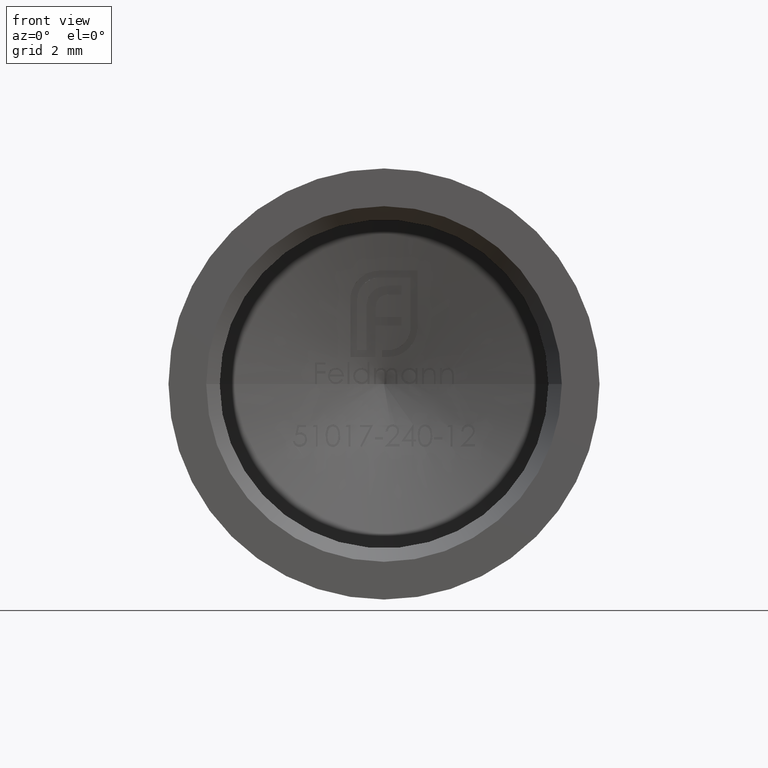
[diagram: clean part render]
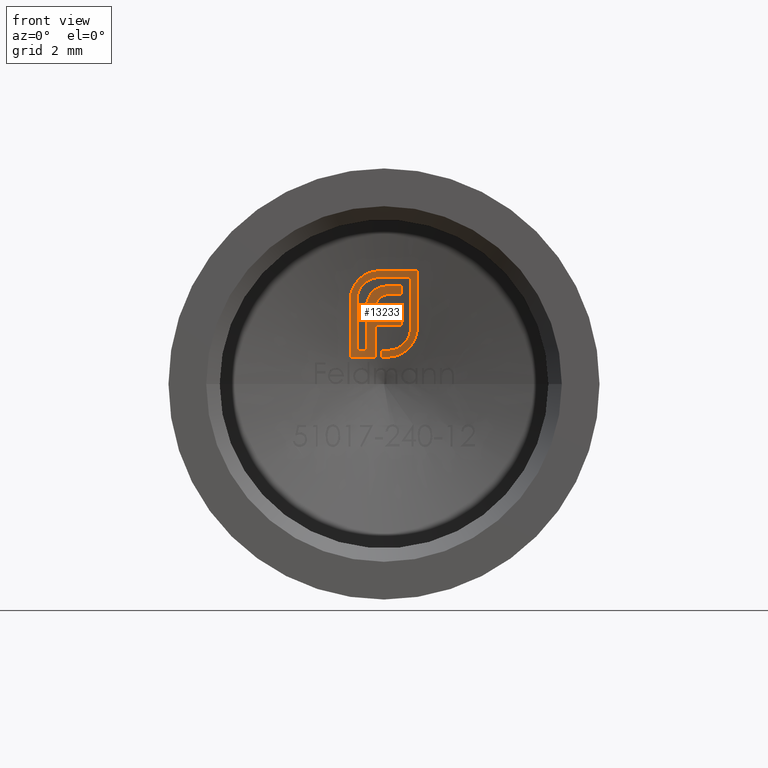
[diagram: same view with one face highlighted and labeled with its STEP entity id]
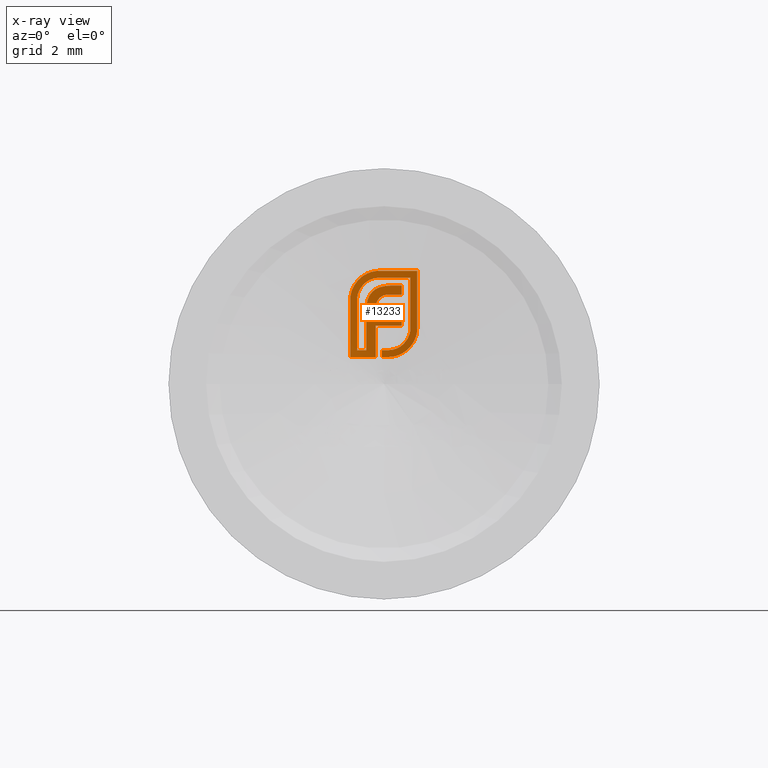
[diagram: x-ray of the same camera — body ghosted, the highlighted face saturated]
A machine part, front view. The second image highlights one B-rep face of the part: STEP entity #13233.
The next image is the same camera in x-ray: the body ghosted, the highlighted face saturated — about 0% of this face is hidden behind the body in this view.
In plain terms, the highlighted conical surface has half-angle 75 deg.
Its self-contained STEP definition (entity closure, byte-faithful):
#134 = CARTESIAN_POINT ( 'NONE',  ( -0.2433240541105528287, 10.78334259401383832, 3.554680266185218596 ) ) ;
#264 = CARTESIAN_POINT ( 'NONE',  ( -0.4732188624301016944, 10.61743272805755645, 4.155220474873162928 ) ) ;
#314 = CARTESIAN_POINT ( 'NONE',  ( 0.5182391580436173095, 11.42129359102153963, 1.062772891488430016 ) ) ;
#321 = CARTESIAN_POINT ( 'NONE',  ( 1.191073256184313811, 11.16410936479228688, 1.780136930600507039 ) ) ;
#355 = EDGE_CURVE ( 'NONE', #9059, #12767, #1266, .T. ) ;
#358 = CARTESIAN_POINT ( 'NONE',  ( -0.6566389944034701776, 10.62995375449193425, 4.083161113188366720 ) ) ;
#366 = CARTESIAN_POINT ( 'NONE',  ( -0.1695112343033198521, 10.67939810049422356, 3.947183960046360962 ) ) ;
#406 = CARTESIAN_POINT ( 'NONE',  ( -0.2641474625173491630, 10.91682011223252857, 3.053365038213695648 ) ) ;
#452 = CARTESIAN_POINT ( 'NONE',  ( -0.6594243849602638985, 10.98570233744071700, 2.729143007495610007 ) ) ;
#451 = CARTESIAN_POINT ( 'NONE',  ( 1.069718622535346109, 11.24094982552607291, 1.515596671005931873 ) ) ;
#517 = CARTESIAN_POINT ( 'NONE',  ( -0.6594243849602638985, 10.98570233744071700, 2.729143007495610007 ) ) ;
#584 = CARTESIAN_POINT ( 'NONE',  ( -0.3126968602489273441, 11.15280644644332142, 2.161537207782977088 ) ) ;
#627 = CARTESIAN_POINT ( 'NONE',  ( -1.001657293610527688, 11.30845690417145200, 1.251698499420081268 ) ) ;
#638 = B_SPLINE_CURVE_WITH_KNOTS ( 'NONE', 3,
 ( #3253, #2278, #5444, #11419 ),
 .UNSPECIFIED., .F., .F.,
 ( 4, 4 ),
 ( 0.006697679589464196857, 0.007652147710954322092 ),
 .UNSPECIFIED. ) ;
#664 = CARTESIAN_POINT ( 'NONE',  ( -0.6029206401924905867, 10.88211147615717422, 3.136868893035792638 ) ) ;
#672 = EDGE_LOOP ( 'NONE', ( #9614, #11719, #12907, #7747, #11613, #1938, #7271, #8560, #7602, #924, #5816, #3522, #9293, #10704, #1053, #3006, #5995, #3181, #935, #1604, #2308, #9861, #4613, #6312, #12676, #12193, #779, #745, #4141, #5273, #12232, #9686, #6493, #3368, #7977, #6836, #6113, #10258, #11946, #12000 ) ) ;
#721 = CARTESIAN_POINT ( 'NONE',  ( 0.2978901951364215650, 10.61706596472331476, 4.198882459466442008 ) ) ;
#745 = ORIENTED_EDGE ( 'NONE', *, *, #12741, .F. ) ;
#779 = ORIENTED_EDGE ( 'NONE', *, *, #10146, .F. ) ;
#780 = CARTESIAN_POINT ( 'NONE',  ( -1.110170167085001491, 10.71628522906261516, 3.647970947980651690 ) ) ;
#882 = EDGE_CURVE ( 'NONE', #4011, #2346, #2606, .T. ) ;
#915 = CARTESIAN_POINT ( 'NONE',  ( -1.253355793030608956, 10.83831620651414696, 3.115037900739153098 ) ) ;
#919 = CARTESIAN_POINT ( 'NONE',  ( 0.4213317924720296204, 11.37377939198252186, 1.293022771506558533 ) ) ;
#924 = ORIENTED_EDGE ( 'NONE', *, *, #4314, .F. ) ;
#933 = B_SPLINE_CURVE_WITH_KNOTS ( 'NONE', 3,
 ( #6242, #10364, #7412, #4664, #11889, #7976, #9341, #1060, #10715, #4774 ),
 .UNSPECIFIED., .F., .F.,
 ( 4, 2, 2, 2, 4 ),
 ( 0.000000000000000000, 0.0001358462477003052405, 0.0002716924954006104810, 0.0004075387431009167244, 0.0005433849908012229135 ),
 .UNSPECIFIED. ) ;
#935 = ORIENTED_EDGE ( 'NONE', *, *, #7231, .F. ) ;
#968 = CARTESIAN_POINT ( 'NONE',  ( -0.8946738547044057466, 10.76275543361560239, 3.528289486708229283 ) ) ;
#1028 = CARTESIAN_POINT ( 'NONE',  ( 1.020215079330140551, 11.26507293020398848, 1.440340858638214261 ) ) ;
#1053 = ORIENTED_EDGE ( 'NONE', *, *, #12171, .F. ) ;
#1059 = CARTESIAN_POINT ( 'NONE',  ( 0.2157415709314986496, 10.84572805253975680, 3.323074415565955064 ) ) ;
#1060 = CARTESIAN_POINT ( 'NONE',  ( -0.8166899600559849315, 10.64848221603874912, 3.983546323950967860 ) ) ;
#1080 = EDGE_CURVE ( 'NONE', #9316, #11594, #638, .T. ) ;
#1101 = CARTESIAN_POINT ( 'NONE',  ( -0.2900255182388855602, 10.93604912877039048, 2.978941634808932371 ) ) ;
#1152 = CARTESIAN_POINT ( 'NONE',  ( -0.3879603547800207219, 10.80465252567604217, 3.461779580568327130 ) ) ;
#1183 = CARTESIAN_POINT ( 'NONE',  ( -0.1246291608954841756, 10.87254990435634738, 3.227590688719622847 ) ) ;
#1208 = CARTESIAN_POINT ( 'NONE',  ( -0.2169265141573604727, 10.78076552079796180, 3.565921661557652111 ) ) ;
#1228 = EDGE_CURVE ( 'NONE', #2346, #10290, #9775, .T. ) ;
#1266 = B_SPLINE_CURVE_WITH_KNOTS ( 'NONE', 3,
 ( #1910, #4893, #10068, #6908, #919, #7073, #2855, #13196, #3873, #5924 ),
 .UNSPECIFIED., .F., .F.,
 ( 4, 2, 2, 2, 4 ),
 ( 0.000000000000000000, 0.0001656254510194789264, 0.0003312509020389578528, 0.0004968763530584365895, 0.0006625018040779153804 ),
 .UNSPECIFIED. ) ;
#1273 = CARTESIAN_POINT ( 'NONE',  ( 0.06342001417806018837, 10.85104504750736965, 3.309833828674840106 ) ) ;
#1330 = CARTESIAN_POINT ( 'NONE',  ( 0.5281490697403309342, 10.74971785167613447, 3.652465564041724289 ) ) ;
#1359 = B_SPLINE_CURVE_WITH_KNOTS ( 'NONE', 3,
 ( #1568, #9623, #9673, #2597 ),
 .UNSPECIFIED., .F., .F.,
 ( 4, 4 ),
 ( 0.002152027295361657808, 0.002487553794992473314 ),
 .UNSPECIFIED. ) ;
#1366 = VERTEX_POINT ( 'NONE', #2163 ) ;
#1478 = CARTESIAN_POINT ( 'NONE',  ( -0.2780241077777936276, 10.92658614537447015, 3.015514259386824936 ) ) ;
#1500 = VERTEX_POINT ( 'NONE', #4096 ) ;
#1568 = CARTESIAN_POINT ( 'NONE',  ( 0.6536455928817421768, 11.04914302250940494, 2.486433740197674602 ) ) ;
#1604 = ORIENTED_EDGE ( 'NONE', *, *, #10939, .F. ) ;
#1635 = CARTESIAN_POINT ( 'NONE',  ( 0.8716515069738145494, 11.23474944785518304, 1.663728158845152238 ) ) ;
#1652 = CARTESIAN_POINT ( 'NONE',  ( -1.001657293610527466, 10.94018969745794578, 2.805595843226769581 ) ) ;
#1733 = EDGE_CURVE ( 'NONE', #8076, #10280, #7266, .T. ) ;
#1737 = CARTESIAN_POINT ( 'NONE',  ( -0.5182543294720668436, 10.83949934335397103, 3.313075253422793853 ) ) ;
#1764 = CARTESIAN_POINT ( 'NONE',  ( -0.08282935312548563023, 11.46915091082972893, 1.000000000000000000 ) ) ;
#1785 = B_SPLINE_CURVE_WITH_KNOTS ( 'NONE', 3,
 ( #4137, #1101, #5029, #2039, #8132, #13208, #5071, #13255, #9237, #12221 ),
 .UNSPECIFIED., .F., .F.,
 ( 4, 3, 3, 4 ),
 ( 0.000000000000000000, 0.0001189127789049717330, 0.0001795930550203252098, 0.0002406153749452432148 ),
 .UNSPECIFIED. ) ;
#1819 = CARTESIAN_POINT ( 'NONE',  ( -0.2208271837044394892, 10.61168287734798987, 4.198047868689132933 ) ) ;
#1828 = CARTESIAN_POINT ( 'NONE',  ( -0.1695112343033198521, 10.61201407754752246, 4.198882459466442008 ) ) ;
#1910 = CARTESIAN_POINT ( 'NONE',  ( 0.1508906820503041479, 11.40019792416203614, 1.251698499420081268 ) ) ;
#1913 = DIRECTION ( 'NONE',  ( 1.000000000000000000, 0.000000000000000000, 0.000000000000000000 ) ) ;
#1938 = ORIENTED_EDGE ( 'NONE', *, *, #7228, .F. ) ;
#1982 = CARTESIAN_POINT ( 'NONE',  ( -1.206129675286370384, 10.76244710949660366, 3.435397799288434140 ) ) ;
#2021 = EDGE_CURVE ( 'NONE', #10280, #1366, #9587, .T. ) ;
#2039 = CARTESIAN_POINT ( 'NONE',  ( -0.3044392186170329917, 10.95581122826907361, 2.903316285091132265 ) ) ;
#2099 = CARTESIAN_POINT ( 'NONE',  ( 1.044965805188694086, 11.25301148500011550, 1.477969587715892708 ) ) ;
#2138 = CARTESIAN_POINT ( 'NONE',  ( -1.253355793030608956, 11.30838718935037157, 1.000000000000000000 ) ) ;
#2146 = CARTESIAN_POINT ( 'NONE',  ( 0.6536455928817421768, 11.04914302250940494, 2.486433740197674602 ) ) ;
#2163 = CARTESIAN_POINT ( 'NONE',  ( 1.234735240777593335, 11.08899522778271596, 2.083844558727288909 ) ) ;
#2198 = EDGE_CURVE ( 'NONE', #13117, #8076, #11752, .T. ) ;
#2278 = CARTESIAN_POINT ( 'NONE',  ( -0.6279216656614928782, 11.43206599383698752, 1.000000000000000000 ) ) ;
#2287 = CARTESIAN_POINT ( 'NONE',  ( -0.2935141347919171806, 10.78972081661109073, 3.526899839852684515 ) ) ;
#2308 = ORIENTED_EDGE ( 'NONE', *, *, #9622, .F. ) ;
#2346 = VERTEX_POINT ( 'NONE', #10103 ) ;
#2369 = CARTESIAN_POINT ( 'NONE',  ( 0.2453583476918172745, 11.46301871168365416, 1.000905635432476570 ) ) ;
#2407 = B_SPLINE_CURVE_WITH_KNOTS ( 'NONE', 3,
 ( #7920, #6910, #4728, #11025 ),
 .UNSPECIFIED., .F., .F.,
 ( 4, 4 ),
 ( 0.001730843256147333300, 0.002695212669129569676 ),
 .UNSPECIFIED. ) ;
#2489 = B_SPLINE_CURVE_WITH_KNOTS ( 'NONE', 3,
 ( #3451, #9734, #9551, #7679 ),
 .UNSPECIFIED., .F., .F.,
 ( 4, 4 ),
 ( 0.006539150735051768235, 0.008031916321640505951 ),
 .UNSPECIFIED. ) ;
#2536 = EDGE_CURVE ( 'NONE', #9100, #4916, #5496, .T. ) ;
#2540 = CARTESIAN_POINT ( 'NONE',  ( -0.7416116500770251196, 10.63903194434736221, 4.033865841224195670 ) ) ;
#2560 = CARTESIAN_POINT ( 'NONE',  ( -0.1740058503643927279, 10.88349181031967916, 3.184383405681419976 ) ) ;
#2572 = CARTESIAN_POINT ( 'NONE',  ( 0.8984859287905668790, 11.22020483113245426, 1.710939821134884076 ) ) ;
#2587 = CARTESIAN_POINT ( 'NONE',  ( -0.6029206401924905867, 10.88211147615717422, 3.136868893035792638 ) ) ;
#2597 = CARTESIAN_POINT ( 'NONE',  ( 0.6536455928817421768, 11.13293313931984940, 2.161537207782977088 ) ) ;
#2606 = B_SPLINE_CURVE_WITH_KNOTS ( 'NONE', 3,
 ( #9116, #3881, #8131, #968, #6090, #11033, #6957, #8005, #13165, #12053 ),
 .UNSPECIFIED., .F., .F.,
 ( 4, 2, 2, 2, 4 ),
 ( 0.000000000000000000, 0.0001664201758982373233, 0.0003328403517964746467, 0.0004992605276947119971, 0.0006656807035929492933 ),
 .UNSPECIFIED. ) ;
#2634 = CARTESIAN_POINT ( 'NONE',  ( 0.9830367413575119562, 11.12064220427707006, 2.083844558727288909 ) ) ;
#2638 = CARTESIAN_POINT ( 'NONE',  ( 1.176257902578488279, 11.17655909360886923, 1.734145590540119075 ) ) ;
#2671 = CARTESIAN_POINT ( 'NONE',  ( -0.4684758631825453601, 10.82331409948897338, 3.381483360198422883 ) ) ;
#2689 = CARTESIAN_POINT ( 'NONE',  ( 1.191073256184313811, 11.16410936479228688, 1.780136930600507039 ) ) ;
#2855 = CARTESIAN_POINT ( 'NONE',  ( 0.5685218004715163476, 11.34276802693577046, 1.361426098264004514 ) ) ;
#2864 = CARTESIAN_POINT ( 'NONE',  ( 1.095690332344828599, 11.22780516606560219, 1.557310380108104964 ) ) ;
#2942 = VERTEX_POINT ( 'NONE', #13058 ) ;
#3006 = ORIENTED_EDGE ( 'NONE', *, *, #10679, .F. ) ;
#3051 = CARTESIAN_POINT ( 'NONE',  ( -0.2246393147396444356, 10.67914742709648301, 3.945752880880289304 ) ) ;
#3151 = B_SPLINE_CURVE_WITH_KNOTS ( 'NONE', 3,
 ( #2689, #2638, #5713, #4653, #6741, #10034, #4823, #2864, #11970, #7928 ),
 .UNSPECIFIED., .F., .F.,
 ( 4, 3, 3, 4 ),
 ( 0.000000000000000000, 0.0001496904950075358953, 0.0002254258711029978309, 0.0003015573197085586583 ),
 .UNSPECIFIED. ) ;
#3158 = CARTESIAN_POINT ( 'NONE',  ( -0.1695112343033198521, 10.67939810049422356, 3.947183960046360962 ) ) ;
#3181 = ORIENTED_EDGE ( 'NONE', *, *, #2536, .F. ) ;
#3199 = CARTESIAN_POINT ( 'NONE',  ( -0.009631320130870129476, 10.85688934258209493, 3.288401663094821625 ) ) ;
#3211 = CARTESIAN_POINT ( 'NONE',  ( -0.3126968602489273441, 10.98691795716242936, 2.785646752263383430 ) ) ;
#3219 = CARTESIAN_POINT ( 'NONE',  ( -0.3126968602489282878, 11.35812450618299252, 1.387699873013314100 ) ) ;
#3245 = B_SPLINE_CURVE_WITH_KNOTS ( 'NONE', 3,
 ( #3199, #3386, #9433, #4223, #9384, #5246, #3291, #5383, #1183, #12548, #7474, #10330, #10523 ),
 .UNSPECIFIED., .F., .F.,
 ( 4, 3, 3, 3, 4 ),
 ( 0.000000000000000000, 4.916011534716131017E-05, 9.845895257792747885E-05, 0.0001479516712229819882, 0.0001980046889935523394 ),
 .UNSPECIFIED. ) ;
#3253 = CARTESIAN_POINT ( 'NONE',  ( -0.3126968602489273441, 11.45727401962419201, 1.000000000000000000 ) ) ;
#3262 = VERTEX_POINT ( 'NONE', #8828 ) ;
#3263 = VERTEX_POINT ( 'NONE', #5853 ) ;
#3268 = CARTESIAN_POINT ( 'NONE',  ( 0.2071823631977518509, 10.75815418175201899, 3.651684335950307503 ) ) ;
#3291 = CARTESIAN_POINT ( 'NONE',  ( -0.09751797577028413488, 10.86790554551342503, 3.245838153666627424 ) ) ;
#3313 = CARTESIAN_POINT ( 'NONE',  ( -0.3126968602489273996, 11.04001479319509116, 2.586176377862551057 ) ) ;
#3332 = B_SPLINE_CURVE_WITH_KNOTS ( 'NONE', 3,
 ( #8119, #3051, #9020, #9105, #10102, #4035, #10184, #4074, #8073, #7069 ),
 .UNSPECIFIED., .F., .F.,
 ( 4, 2, 2, 2, 4 ),
 ( 0.000000000000000000, 0.0001650699929171063650, 0.0003301399858342127301, 0.0004952099787513189596, 0.0006602799716684251349 ),
 .UNSPECIFIED. ) ;
#3343 = B_SPLINE_CURVE_WITH_KNOTS ( 'NONE', 3,
 ( #8994, #12152, #7208, #1059 ),
 .UNSPECIFIED., .F., .F.,
 ( 4, 4 ),
 ( 0.003202012160605001261, 0.003638394130782475217 ),
 .UNSPECIFIED. ) ;
#3368 = ORIENTED_EDGE ( 'NONE', *, *, #5708, .F. ) ;
#3386 = CARTESIAN_POINT ( 'NONE',  ( -0.02478556059678957771, 10.85849192985430989, 3.282376315429698543 ) ) ;
#3427 = B_SPLINE_CURVE_WITH_KNOTS ( 'NONE', 3,
 ( #5754, #6823, #10976, #9898, #3791, #11874 ),
 .UNSPECIFIED., .F., .F.,
 ( 4, 2, 4 ),
 ( 0.000000000000000000, 0.0001582293088963881967, 0.0003164586177927763934 ),
 .UNSPECIFIED. ) ;
#3451 = CARTESIAN_POINT ( 'NONE',  ( -0.6594243849602638985, 11.35892974509016362, 1.251698499420081268 ) ) ;
#3522 = ORIENTED_EDGE ( 'NONE', *, *, #11717, .F. ) ;
#3566 = CARTESIAN_POINT ( 'NONE',  ( 0.6536455928817421768, 10.77275122218357417, 3.542679297845014563 ) ) ;
#3590 = CARTESIAN_POINT ( 'NONE',  ( -0.4295568778368222262, 10.81374068918439590, 3.422598056918283227 ) ) ;
#3591 = EDGE_CURVE ( 'NONE', #8294, #13117, #4855, .T. ) ;
#3619 = CARTESIAN_POINT ( 'NONE',  ( -0.2780241077777936276, 10.92658614537447015, 3.015514259386824936 ) ) ;
#3714 = CARTESIAN_POINT ( 'NONE',  ( 2.163521355902780435E-17, 11.73108265645873338, 0.000000000000000000 ) ) ;
#3761 = CARTESIAN_POINT ( 'NONE',  ( 1.234735240777593335, 10.56529419157631011, 4.198882459466442008 ) ) ;
#3791 = CARTESIAN_POINT ( 'NONE',  ( 1.204728413421271238, 11.15107721792158024, 1.829519832489686193 ) ) ;
#3793 = CARTESIAN_POINT ( 'NONE',  ( -1.001657293610527688, 11.01822514646699425, 2.495920158407092693 ) ) ;
#3850 = CARTESIAN_POINT ( 'NONE',  ( 0.7681821015610048597, 10.60056246802761848, 4.198882459466442008 ) ) ;
#3871 = CARTESIAN_POINT ( 'NONE',  ( -0.2720138771660565169, 10.61159146623187688, 4.195383536033015837 ) ) ;
#3873 = CARTESIAN_POINT ( 'NONE',  ( 0.6971724150907031570, 11.30518577522432189, 1.457272336016402159 ) ) ;
#3881 = CARTESIAN_POINT ( 'NONE',  ( -0.7970341974923724759, 10.73432607764131497, 3.660329849972501659 ) ) ;
#4011 = VERTEX_POINT ( 'NONE', #5781 ) ;
#4035 = CARTESIAN_POINT ( 'NONE',  ( -0.5406748956101101733, 10.69281497431897243, 3.863452641131183807 ) ) ;
#4074 = CARTESIAN_POINT ( 'NONE',  ( -0.6787559661687746493, 10.71064342257980861, 3.773979395617331534 ) ) ;
#4096 = CARTESIAN_POINT ( 'NONE',  ( -0.3126968602489273441, 11.06653187956590223, 2.486433740197674602 ) ) ;
#4110 = CARTESIAN_POINT ( 'NONE',  ( 0.1508906820503041479, 11.46703533372010675, 1.000000000000000000 ) ) ;
#4137 = CARTESIAN_POINT ( 'NONE',  ( -0.2780241077777936276, 10.92658614537447015, 3.015514259386824936 ) ) ;
#4141 = ORIENTED_EDGE ( 'NONE', *, *, #9267, .F. ) ;
#4143 = CARTESIAN_POINT ( 'NONE',  ( 0.9830367413575119562, 10.64806629767433854, 3.947183960046360962 ) ) ;
#4217 = CARTESIAN_POINT ( 'NONE',  ( -0.005020455731209405581, 11.40326919264334293, 1.251698499420080823 ) ) ;
#4223 = CARTESIAN_POINT ( 'NONE',  ( -0.05469195162671761090, 10.86186510193268617, 3.269388555799415119 ) ) ;
#4245 = CARTESIAN_POINT ( 'NONE',  ( -0.3427064975971805261, 10.79656440981908538, 3.496882884889696008 ) ) ;
#4246 = CARTESIAN_POINT ( 'NONE',  ( -0.06827480450647656351, 10.76901784520386052, 3.615872735177605435 ) ) ;
#4258 = CARTESIAN_POINT ( 'NONE',  ( 0.1774532261783996201, 10.84653971945814810, 3.322524622922911508 ) ) ;
#4277 = VERTEX_POINT ( 'NONE', #9450 ) ;
#4314 = EDGE_CURVE ( 'NONE', #5515, #1500, #5623, .T. ) ;
#4349 = CARTESIAN_POINT ( 'NONE',  ( -0.3126968602489273441, 11.06653187956590223, 2.486433740197674602 ) ) ;
#4464 = CARTESIAN_POINT ( 'NONE',  ( 0.6536455928817421768, 10.74379412674733558, 3.652465564041724289 ) ) ;
#4512 = CARTESIAN_POINT ( 'NONE',  ( -0.6029206401924905867, 10.88211147615717422, 3.136868893035792638 ) ) ;
#4549 = CARTESIAN_POINT ( 'NONE',  ( 1.234735240777593335, 10.56529419157631011, 4.198882459466442008 ) ) ;
#4560 = CARTESIAN_POINT ( 'NONE',  ( -0.1923863443848250199, 10.88838917981933463, 3.165074532621362291 ) ) ;
#4586 = CARTESIAN_POINT ( 'NONE',  ( 0.2767399317603448927, 10.75653733109785115, 3.652465564041724289 ) ) ;
#4613 = ORIENTED_EDGE ( 'NONE', *, *, #12035, .F. ) ;
#4620 = CARTESIAN_POINT ( 'NONE',  ( -0.8878831869537293642, 11.32750461839778566, 1.251698499420081934 ) ) ;
#4631 = EDGE_CURVE ( 'NONE', #5282, #2942, #10931, .T. ) ;
#4634 = B_SPLINE_CURVE_WITH_KNOTS ( 'NONE', 3,
 ( #6285, #9303, #3219, #7372 ),
 .UNSPECIFIED., .F., .F.,
 ( 4, 4 ),
 ( 0.006953100636973397024, 0.008153927317847257245 ),
 .UNSPECIFIED. ) ;
#4648 = CARTESIAN_POINT ( 'NONE',  ( -1.001657293610527688, 11.30845690417145200, 1.251698499420081268 ) ) ;
#4653 = CARTESIAN_POINT ( 'NONE',  ( 1.139919322385436029, 11.20184030752485427, 1.644612411368698401 ) ) ;
#4664 = CARTESIAN_POINT ( 'NONE',  ( -1.010811545101904851, 10.68540416101546597, 3.796295761498214461 ) ) ;
#4690 = CARTESIAN_POINT ( 'NONE',  ( -0.4732188624301016944, 10.61743272805755645, 4.155220474873162928 ) ) ;
#4697 = EDGE_CURVE ( 'NONE', #10324, #5515, #1785, .T. ) ;
#4728 = CARTESIAN_POINT ( 'NONE',  ( 0.008620409459761543824, 11.16513323170924998, 2.161537207782977088 ) ) ;
#4774 = CARTESIAN_POINT ( 'NONE',  ( -0.7416116500770251196, 10.63903194434736221, 4.033865841224195670 ) ) ;
#4780 = EDGE_CURVE ( 'NONE', #2942, #9059, #5881, .T. ) ;
#4823 = CARTESIAN_POINT ( 'NONE',  ( 1.107494320517296460, 11.22126321968708496, 1.578852953785505608 ) ) ;
#4855 = B_SPLINE_CURVE_WITH_KNOTS ( 'NONE', 3,
 ( #6378, #8494, #358, #7484, #6419, #264 ),
 .UNSPECIFIED., .F., .F.,
 ( 4, 2, 4 ),
 ( 0.000000000000000000, 0.0001478887417600395851, 0.0002957774835200791702 ),
 .UNSPECIFIED. ) ;
#4857 = VERTEX_POINT ( 'NONE', #11363 ) ;
#4893 = CARTESIAN_POINT ( 'NONE',  ( 0.2061886641213674098, 11.39806123964200957, 1.253064343984402251 ) ) ;
#4900 = DIRECTION ( 'NONE',  ( 6.618464551199105246E-18, -1.000000000000000000, 0.000000000000000000 ) ) ;
#4916 = VERTEX_POINT ( 'NONE', #4586 ) ;
#4919 = CARTESIAN_POINT ( 'NONE',  ( -0.1015573170549587262, 10.77146949415595500, 3.605933914526482376 ) ) ;
#5029 = CARTESIAN_POINT ( 'NONE',  ( -0.2988977318179171783, 10.94584937927845480, 2.941279323234382126 ) ) ;
#5071 = CARTESIAN_POINT ( 'NONE',  ( -0.3110778864449019188, 10.97121010149663256, 2.844807342596893829 ) ) ;
#5246 = CARTESIAN_POINT ( 'NONE',  ( -0.08376301980938301306, 10.86569117671981033, 3.254519273406546453 ) ) ;
#5267 = CARTESIAN_POINT ( 'NONE',  ( 0.2767399317603448927, 10.75653733109785115, 3.652465564041724289 ) ) ;
#5273 = ORIENTED_EDGE ( 'NONE', *, *, #355, .F. ) ;
#5282 = VERTEX_POINT ( 'NONE', #1764 ) ;
#5290 = CARTESIAN_POINT ( 'NONE',  ( 0.07310275728702400611, 11.40269248702755966, 1.251698499420082156 ) ) ;
#5375 = B_SPLINE_CURVE_WITH_KNOTS ( 'NONE', 3,
 ( #915, #12085, #10021, #1982, #8030, #7995, #6041, #11180 ),
 .UNSPECIFIED., .F., .F.,
 ( 4, 2, 2, 4 ),
 ( 0.000000000000000000, 0.0002859816643252807516, 0.0004289724964879204497, 0.0005719633286505602021 ),
 .UNSPECIFIED. ) ;
#5383 = CARTESIAN_POINT ( 'NONE',  ( -0.1113269035945815694, 10.87012860307422812, 3.237122970843550718 ) ) ;
#5388 = B_SPLINE_CURVE_WITH_KNOTS ( 'NONE', 3,
 ( #8510, #4620, #8871, #5770 ),
 .UNSPECIFIED., .F., .F.,
 ( 4, 4 ),
 ( 0.001391106858586026521, 0.001736942951801663526 ),
 .UNSPECIFIED. ) ;
#5444 = CARTESIAN_POINT ( 'NONE',  ( -0.9414949176202069836, 11.37370702206428952, 1.000000000000000000 ) ) ;
#5449 = CARTESIAN_POINT ( 'NONE',  ( -0.6579762693364226145, 10.96790085546506432, 2.797840760394894932 ) ) ;
#5467 = B_SPLINE_CURVE_WITH_KNOTS ( 'NONE', 3,
 ( #11476, #8413, #6420, #314, #8458, #7485, #2369, #8496 ),
 .UNSPECIFIED., .F., .F.,
 ( 4, 2, 2, 4 ),
 ( 0.000000000000000000, 0.0001413089714473464572, 0.0002826179428946929144, 0.0005652358857893850699 ),
 .UNSPECIFIED. ) ;
#5471 = CARTESIAN_POINT ( 'NONE',  ( 0.9830367413575119562, 10.64806629767433854, 3.947183960046360962 ) ) ;
#5496 = B_SPLINE_CURVE_WITH_KNOTS ( 'NONE', 3,
 ( #13178, #4919, #4246, #7058, #7017, #6286, #3268, #5267 ),
 .UNSPECIFIED., .F., .F.,
 ( 4, 2, 2, 4 ),
 ( 0.000000000000000000, 0.0001044282383505432246, 0.0002088564767010864492, 0.0004177129534021730610 ),
 .UNSPECIFIED. ) ;
#5515 = VERTEX_POINT ( 'NONE', #3211 ) ;
#5523 = CARTESIAN_POINT ( 'NONE',  ( 1.234735240777593113, 10.74612765233151102, 3.495428303917091029 ) ) ;
#5572 = B_SPLINE_CURVE_WITH_KNOTS ( 'NONE', 3,
 ( #11445, #4258, #12491, #1273, #9421, #11499 ),
 .UNSPECIFIED., .F., .F.,
 ( 4, 2, 4 ),
 ( 0.000000000000000000, 0.0001148892114261486873, 0.0002297784228522973746 ),
 .UNSPECIFIED. ) ;
#5578 = CARTESIAN_POINT ( 'NONE',  ( -1.253355793030608956, 11.17215925349380967, 1.709472976876295292 ) ) ;
#5586 = CARTESIAN_POINT ( 'NONE',  ( -0.2246216627096921936, 10.89913197200573514, 3.122695812206184307 ) ) ;
#5623 = B_SPLINE_CURVE_WITH_KNOTS ( 'NONE', 3,
 ( #8370, #9407, #3313, #4349 ),
 .UNSPECIFIED., .F., .F.,
 ( 4, 4 ),
 ( 0.002743501218454801743, 0.003053125877548327691 ),
 .UNSPECIFIED. ) ;
#5646 = B_SPLINE_CURVE_WITH_KNOTS ( 'NONE', 3,
 ( #12373, #11432, #1152, #10360, #4245, #7267, #2287, #6240, #134, #1208, #10404, #9410, #11385 ),
 .UNSPECIFIED., .F., .F.,
 ( 4, 3, 3, 3, 4 ),
 ( 0.000000000000000000, 8.665964677703199507E-05, 0.0001735910611386216841, 0.0002600756125366974363, 0.0003477364743265353168 ),
 .UNSPECIFIED. ) ;
#5687 = CARTESIAN_POINT ( 'NONE',  ( -0.3126968602489273441, 11.45727401962419201, 1.000000000000000000 ) ) ;
#5706 = CARTESIAN_POINT ( 'NONE',  ( -1.001657293610527688, 10.86125540518187016, 3.115037900739153098 ) ) ;
#5708 = EDGE_CURVE ( 'NONE', #3263, #4277, #5467, .T. ) ;
#5713 = CARTESIAN_POINT ( 'NONE',  ( 1.159848758494165688, 11.18912166475769965, 1.688552683479507044 ) ) ;
#5754 = CARTESIAN_POINT ( 'NONE',  ( 1.234735240777593335, 11.08899522778271596, 2.083844558727288909 ) ) ;
#5770 = CARTESIAN_POINT ( 'NONE',  ( -0.6594243849602638985, 11.35892974509016362, 1.251698499420081268 ) ) ;
#5781 = CARTESIAN_POINT ( 'NONE',  ( -0.7589480263125919501, 10.72596913424622755, 3.699980076687352515 ) ) ;
#5804 = EDGE_CURVE ( 'NONE', #11119, #8402, #1359, .T. ) ;
#5816 = ORIENTED_EDGE ( 'NONE', *, *, #4697, .F. ) ;
#5853 = CARTESIAN_POINT ( 'NONE',  ( 0.6838237292918030175, 11.38108278805168361, 1.143185625945607464 ) ) ;
#5863 = EDGE_CURVE ( 'NONE', #12038, #4011, #3332, .T. ) ;
#5881 = B_SPLINE_CURVE_WITH_KNOTS ( 'NONE', 3,
 ( #6307, #4217, #5290, #6261 ),
 .UNSPECIFIED., .F., .F.,
 ( 4, 4 ),
 ( 0.001167010730956621846, 0.001399543073656213128 ),
 .UNSPECIFIED. ) ;
#5890 = EDGE_CURVE ( 'NONE', #7771, #8921, #5375, .T. ) ;
#5924 = CARTESIAN_POINT ( 'NONE',  ( 0.7358328579985035089, 11.29168281206415081, 1.494407766718016894 ) ) ;
#5971 = CARTESIAN_POINT ( 'NONE',  ( -0.08282935312548567186, 11.44674580923744855, 1.083903322769692146 ) ) ;
#5995 = ORIENTED_EDGE ( 'NONE', *, *, #9735, .F. ) ;
#6041 = CARTESIAN_POINT ( 'NONE',  ( -1.132935639662929761, 10.72500302848034437, 3.607034312355986927 ) ) ;
#6090 = CARTESIAN_POINT ( 'NONE',  ( -0.9204818010160702446, 10.77332195749664123, 3.480792845464526497 ) ) ;
#6113 = ORIENTED_EDGE ( 'NONE', *, *, #12512, .F. ) ;
#6144 = VERTEX_POINT ( 'NONE', #517 ) ;
#6158 = CARTESIAN_POINT ( 'NONE',  ( 0.3326135845192166318, 11.07101335383312168, 2.486433740197671938 ) ) ;
#6188 = CARTESIAN_POINT ( 'NONE',  ( 0.5999168837278945343, 10.67287489365006259, 3.947183960046366291 ) ) ;
#6223 = B_SPLINE_CURVE_WITH_KNOTS ( 'NONE', 3,
 ( #7704, #8674, #5578, #8717, #8634, #10794 ),
 .UNSPECIFIED., .F., .F.,
 ( 4, 2, 4 ),
 ( 0.008782041451198296586, 0.009837762432746054164, 0.01089348341429381348 ),
 .UNSPECIFIED. ) ;
#6240 = CARTESIAN_POINT ( 'NONE',  ( -0.2687888822777131925, 10.78642264346362722, 3.541309015188488285 ) ) ;
#6242 = CARTESIAN_POINT ( 'NONE',  ( -1.110170167085001491, 10.71628522906261516, 3.647970947980651690 ) ) ;
#6261 = CARTESIAN_POINT ( 'NONE',  ( 0.1508906820503041479, 11.40019792416203614, 1.251698499420081268 ) ) ;
#6285 = CARTESIAN_POINT ( 'NONE',  ( -0.3126968602489273441, 11.15280644644332142, 2.161537207782977088 ) ) ;
#6286 = CARTESIAN_POINT ( 'NONE',  ( 0.1377327588149014626, 10.75973916645861728, 3.649036265333032159 ) ) ;
#6307 = CARTESIAN_POINT ( 'NONE',  ( -0.08282935312548564410, 11.40189256193660405, 1.251698499420081490 ) ) ;
#6312 = ORIENTED_EDGE ( 'NONE', *, *, #1228, .F. ) ;
#6378 = CARTESIAN_POINT ( 'NONE',  ( -0.7416116500770251196, 10.63903194434736221, 4.033865841224195670 ) ) ;
#6416 = CARTESIAN_POINT ( 'NONE',  ( 1.234735240777593335, 11.08899522778271596, 2.083844558727288909 ) ) ;
#6419 = CARTESIAN_POINT ( 'NONE',  ( -0.5202346816014425945, 10.61999919998016040, 4.140225942866107900 ) ) ;
#6420 = CARTESIAN_POINT ( 'NONE',  ( 0.6031763396999195725, 11.40220134491986670, 1.098981505368565204 ) ) ;
#6493 = ORIENTED_EDGE ( 'NONE', *, *, #7997, .F. ) ;
#6498 = B_SPLINE_CURVE_WITH_KNOTS ( 'NONE', 3,
 ( #10653, #12542, #7469, #5471 ),
 .UNSPECIFIED., .F., .F.,
 ( 4, 4 ),
 ( 0.002179695057703833188, 0.004096757694464588616 ),
 .UNSPECIFIED. ) ;
#6578 = CARTESIAN_POINT ( 'NONE',  ( 0.7358328579985035089, 11.29168281206415081, 1.494407766718016894 ) ) ;
#6581 = VERTEX_POINT ( 'NONE', #321 ) ;
#6629 = CARTESIAN_POINT ( 'NONE',  ( 0.6536455928817422878, 10.83054074185710647, 3.323074415565955508 ) ) ;
#6741 = CARTESIAN_POINT ( 'NONE',  ( 1.129821084961760480, 11.20828483880355897, 1.622347892803545300 ) ) ;
#6756 = CARTESIAN_POINT ( 'NONE',  ( 0.9573099633284928300, 11.17629454906770903, 1.865097560859794168 ) ) ;
#6823 = CARTESIAN_POINT ( 'NONE',  ( 1.233898725723118872, 11.10096616592103658, 2.032410292526756646 ) ) ;
#6836 = ORIENTED_EDGE ( 'NONE', *, *, #8046, .F. ) ;
#6908 = CARTESIAN_POINT ( 'NONE',  ( 0.3694926773152613642, 11.38198963436228439, 1.277287096742166117 ) ) ;
#6910 = CARTESIAN_POINT ( 'NONE',  ( 0.3327787391361852198, 11.15781919292822266, 2.161537207782977088 ) ) ;
#6946 = CARTESIAN_POINT ( 'NONE',  ( -0.4237401597501690986, 10.61529045649001723, 4.168902122551366496 ) ) ;
#6957 = CARTESIAN_POINT ( 'NONE',  ( -0.9771380555030166892, 10.80840496822079722, 3.329007091042931687 ) ) ;
#7017 = CARTESIAN_POINT ( 'NONE',  ( 0.03415643410721642265, 10.76381439000494566, 3.635778855980708268 ) ) ;
#7058 = CARTESIAN_POINT ( 'NONE',  ( -0.0002470717969093277726, 10.76523531840929593, 3.630633208510736232 ) ) ;
#7069 = CARTESIAN_POINT ( 'NONE',  ( -0.7589480263125919501, 10.72596913424622755, 3.699980076687352515 ) ) ;
#7073 = CARTESIAN_POINT ( 'NONE',  ( 0.5207871155570602539, 11.35423221451029363, 1.334864750438625292 ) ) ;
#7183 = CARTESIAN_POINT ( 'NONE',  ( 0.9646029234480864023, 11.28913843611297096, 1.369662837933675270 ) ) ;
#7208 = CARTESIAN_POINT ( 'NONE',  ( 0.3616330493351488928, 10.84319547461707245, 3.323074415565953288 ) ) ;
#7228 = EDGE_CURVE ( 'NONE', #11821, #9316, #4634, .T. ) ;
#7231 = EDGE_CURVE ( 'NONE', #12012, #9100, #5646, .T. ) ;
#7266 = B_SPLINE_CURVE_WITH_KNOTS ( 'NONE', 3,
 ( #8870, #721, #3850, #3761 ),
 .UNSPECIFIED., .F., .F.,
 ( 4, 4 ),
 ( 0.003650885269063373992, 0.005048928339162536000 ),
 .UNSPECIFIED. ) ;
#7267 = CARTESIAN_POINT ( 'NONE',  ( -0.3183659134641351196, 10.79303586744975618, 3.512416928663451454 ) ) ;
#7271 = ORIENTED_EDGE ( 'NONE', *, *, #12493, .F. ) ;
#7372 = CARTESIAN_POINT ( 'NONE',  ( -0.3126968602489273441, 11.45727401962419201, 1.000000000000000000 ) ) ;
#7412 = CARTESIAN_POINT ( 'NONE',  ( -1.063295461113322293, 10.70033807318724861, 3.724005627917310157 ) ) ;
#7433 = B_SPLINE_CURVE_WITH_KNOTS ( 'NONE', 3,
 ( #8930, #12292, #6158, #2146 ),
 .UNSPECIFIED., .F., .F.,
 ( 4, 4 ),
 ( 0.002076951440111089123, 0.003039568366342215548 ),
 .UNSPECIFIED. ) ;
#7458 = CARTESIAN_POINT ( 'NONE',  ( 0.2157415709314986496, 10.84572805253975680, 3.323074415565955064 ) ) ;
#7469 = CARTESIAN_POINT ( 'NONE',  ( 0.9830367413575104019, 10.80931434525014545, 3.327016002261574013 ) ) ;
#7474 = CARTESIAN_POINT ( 'NONE',  ( -0.1499646508626528152, 10.87781322141385409, 3.206849289909377010 ) ) ;
#7484 = CARTESIAN_POINT ( 'NONE',  ( -0.5666846583617537458, 10.62282102310913245, 4.123483998451742849 ) ) ;
#7485 = CARTESIAN_POINT ( 'NONE',  ( 0.3391926254980824895, 11.45288155771365091, 1.011320841512020952 ) ) ;
#7577 = CARTESIAN_POINT ( 'NONE',  ( -0.2101056452403346764, 10.89348276348221134, 3.144877585065623649 ) ) ;
#7602 = ORIENTED_EDGE ( 'NONE', *, *, #8599, .F. ) ;
#7643 = CARTESIAN_POINT ( 'NONE',  ( 0.7358328579985035089, 11.29168281206415081, 1.494407766718016894 ) ) ;
#7679 = CARTESIAN_POINT ( 'NONE',  ( -0.6594243849602638985, 10.98570233744071700, 2.729143007495610007 ) ) ;
#7691 = B_SPLINE_CURVE_WITH_KNOTS ( 'NONE', 3,
 ( #4110, #7761, #12101, #13210 ),
 .UNSPECIFIED., .F., .F.,
 ( 4, 4 ),
 ( 0.0009068171754998165853, 0.001139565969059127366 ),
 .UNSPECIFIED. ) ;
#7704 = CARTESIAN_POINT ( 'NONE',  ( -1.253355793030608956, 11.30838718935037157, 1.000000000000000000 ) ) ;
#7731 = CARTESIAN_POINT ( 'NONE',  ( 0.8099858947781697349, 11.26350020132759333, 1.574845983025276563 ) ) ;
#7747 = ORIENTED_EDGE ( 'NONE', *, *, #10298, .F. ) ;
#7761 = CARTESIAN_POINT ( 'NONE',  ( 0.07313357123225552869, 11.47014394503990786, 1.000000000000000000 ) ) ;
#7771 = VERTEX_POINT ( 'NONE', #8267 ) ;
#7786 = CARTESIAN_POINT ( 'NONE',  ( -0.4490168936120231824, 10.81855496834601027, 3.402047617872260510 ) ) ;
#7831 = CARTESIAN_POINT ( 'NONE',  ( 0.1508906820503041479, 11.40019792416203614, 1.251698499420081268 ) ) ;
#7920 = CARTESIAN_POINT ( 'NONE',  ( 0.6536455928817421768, 11.13293313931984940, 2.161537207782977088 ) ) ;
#7928 = CARTESIAN_POINT ( 'NONE',  ( 1.069718622535346109, 11.24094982552607291, 1.515596671005931873 ) ) ;
#7976 = CARTESIAN_POINT ( 'NONE',  ( -0.9197302088308509926, 10.66547682279429310, 3.895863232141539623 ) ) ;
#7977 = ORIENTED_EDGE ( 'NONE', *, *, #10746, .F. ) ;
#7995 = CARTESIAN_POINT ( 'NONE',  ( -1.155135539889375007, 10.73370817620989470, 3.565826977095340133 ) ) ;
#7997 = EDGE_CURVE ( 'NONE', #4277, #5282, #7691, .T. ) ;
#8005 = CARTESIAN_POINT ( 'NONE',  ( -0.9969254707167661822, 10.83413056242634731, 3.222772544524312721 ) ) ;
#8007 = CARTESIAN_POINT ( 'NONE',  ( -0.08282935312548560247, 11.42432348532199704, 1.167802066005178663 ) ) ;
#8030 = CARTESIAN_POINT ( 'NONE',  ( -1.191512374465928170, 10.75247166413629429, 3.479903192699156822 ) ) ;
#8046 = EDGE_CURVE ( 'NONE', #6581, #13043, #3151, .T. ) ;
#8073 = CARTESIAN_POINT ( 'NONE',  ( -0.7194798141223067711, 10.71817819285366369, 3.737757461665534464 ) ) ;
#8076 = VERTEX_POINT ( 'NONE', #1828 ) ;
#8119 = CARTESIAN_POINT ( 'NONE',  ( -0.1695112343033198521, 10.67939810049422356, 3.947183960046360962 ) ) ;
#8131 = CARTESIAN_POINT ( 'NONE',  ( -0.8331347471921075609, 10.74299448537936286, 3.619039242962045044 ) ) ;
#8132 = CARTESIAN_POINT ( 'NONE',  ( -0.3072755841328103088, 10.96091012067370229, 2.883885208889554796 ) ) ;
#8141 = EDGE_CURVE ( 'NONE', #8170, #3262, #3245, .T. ) ;
#8170 = VERTEX_POINT ( 'NONE', #11510 ) ;
#8178 = CARTESIAN_POINT ( 'NONE',  ( 0.2141206070962560215, 10.68380850182515829, 3.947183960046355633 ) ) ;
#8239 = CARTESIAN_POINT ( 'NONE',  ( 0.9336338775763693976, 11.30117415681190352, 1.336547569319931572 ) ) ;
#8267 = CARTESIAN_POINT ( 'NONE',  ( -1.253355793030608956, 10.83831620651414696, 3.115037900739153098 ) ) ;
#8294 = VERTEX_POINT ( 'NONE', #2540 ) ;
#8370 = CARTESIAN_POINT ( 'NONE',  ( -0.3126968602489273441, 10.98691795716242936, 2.785646752263383430 ) ) ;
#8402 = VERTEX_POINT ( 'NONE', #8845 ) ;
#8413 = CARTESIAN_POINT ( 'NONE',  ( 0.6436415202080373321, 11.39174828027723940, 1.120839701199760174 ) ) ;
#8458 = CARTESIAN_POINT ( 'NONE',  ( 0.4739645370748831188, 11.42996650359069655, 1.048063663788010080 ) ) ;
#8494 = CARTESIAN_POINT ( 'NONE',  ( -0.6996550668650061144, 10.63431760351758015, 4.059468432811613958 ) ) ;
#8496 = CARTESIAN_POINT ( 'NONE',  ( 0.1508906820503041479, 11.46703533372010675, 1.000000000000000000 ) ) ;
#8510 = CARTESIAN_POINT ( 'NONE',  ( -1.001657293610527688, 11.30845690417145200, 1.251698499420081268 ) ) ;
#8560 = ORIENTED_EDGE ( 'NONE', *, *, #5804, .F. ) ;
#8598 = CARTESIAN_POINT ( 'NONE',  ( -0.2459750649275721512, 10.90769971402926686, 3.089028631843723005 ) ) ;
#8599 = EDGE_CURVE ( 'NONE', #1500, #11119, #7433, .T. ) ;
#8634 = CARTESIAN_POINT ( 'NONE',  ( -1.253355793030608956, 10.92545483965598407, 2.764495189985903156 ) ) ;
#8674 = CARTESIAN_POINT ( 'NONE',  ( -1.253355793030608956, 11.24889404112740010, 1.356005865802094368 ) ) ;
#8717 = CARTESIAN_POINT ( 'NONE',  ( -1.253355793030608734, 11.01095685139510927, 2.413552892092812652 ) ) ;
#8782 = VERTEX_POINT ( 'NONE', #7458 ) ;
#8828 = CARTESIAN_POINT ( 'NONE',  ( -0.1740058503643927279, 10.88349181031967916, 3.184383405681419976 ) ) ;
#8845 = CARTESIAN_POINT ( 'NONE',  ( 0.6536455928817421768, 11.13293313931984940, 2.161537207782977088 ) ) ;
#8846 = CARTESIAN_POINT ( 'NONE',  ( -0.5613876161106986507, 10.85684193082810545, 3.240523179621081606 ) ) ;
#8857 = CARTESIAN_POINT ( 'NONE',  ( -1.001657293610527688, 11.16940074893073209, 1.875296403736062212 ) ) ;
#8870 = CARTESIAN_POINT ( 'NONE',  ( -0.1695112343033198521, 10.61201407754752246, 4.198882459466442008 ) ) ;
#8871 = CARTESIAN_POINT ( 'NONE',  ( -0.7736164055547996021, 11.34466822922138540, 1.251698499420080601 ) ) ;
#8920 = CARTESIAN_POINT ( 'NONE',  ( 0.6536455928817422878, 10.83054074185710647, 3.323074415565955508 ) ) ;
#8921 = VERTEX_POINT ( 'NONE', #780 ) ;
#8930 = CARTESIAN_POINT ( 'NONE',  ( -0.3126968602489273441, 11.06653187956590223, 2.486433740197674602 ) ) ;
#8982 = VERTEX_POINT ( 'NONE', #664 ) ;
#8994 = CARTESIAN_POINT ( 'NONE',  ( 0.6536455928817422878, 10.83054074185710647, 3.323074415565955508 ) ) ;
#9020 = CARTESIAN_POINT ( 'NONE',  ( -0.2796058762044920654, 10.67906055819862665, 3.942561732368169203 ) ) ;
#9021 = CARTESIAN_POINT ( 'NONE',  ( -0.1695112343033198521, 10.61201407754752246, 4.198882459466442008 ) ) ;
#9059 = VERTEX_POINT ( 'NONE', #7831 ) ;
#9100 = VERTEX_POINT ( 'NONE', #12944 ) ;
#9105 = CARTESIAN_POINT ( 'NONE',  ( -0.3881521920414170990, 10.68222582698830614, 3.921489313879031435 ) ) ;
#9116 = CARTESIAN_POINT ( 'NONE',  ( -0.7589480263125919501, 10.72596913424622755, 3.699980076687352515 ) ) ;
#9135 = CARTESIAN_POINT ( 'NONE',  ( 0.7611759413084980830, 11.35935174231312672, 1.190798080507879053 ) ) ;
#9167 = EDGE_CURVE ( 'NONE', #8782, #8170, #5572, .T. ) ;
#9195 = B_SPLINE_CURVE_WITH_KNOTS ( 'NONE', 3,
 ( #2560, #4560, #7577, #5586, #12740, #8598, #11614, #406, #9679, #1478 ),
 .UNSPECIFIED., .F., .F.,
 ( 4, 3, 3, 4 ),
 ( 0.000000000000000000, 8.131380144665795249E-05, 0.0001421072113053854205, 0.0002039659410234658725 ),
 .UNSPECIFIED. ) ;
#9217 = CARTESIAN_POINT ( 'NONE',  ( 1.069718622535346109, 11.24094982552607291, 1.515596671005931873 ) ) ;
#9237 = CARTESIAN_POINT ( 'NONE',  ( -0.3125302628088180157, 10.98167091218165048, 2.805370680576105169 ) ) ;
#9267 = EDGE_CURVE ( 'NONE', #12767, #10340, #9662, .T. ) ;
#9283 = B_SPLINE_CURVE_WITH_KNOTS ( 'NONE', 3,
 ( #9436, #10479, #1330, #4464 ),
 .UNSPECIFIED., .F., .F.,
 ( 4, 4 ),
 ( 0.003593775238862494028, 0.003968391987651763257 ),
 .UNSPECIFIED. ) ;
#9293 = ORIENTED_EDGE ( 'NONE', *, *, #8141, .F. ) ;
#9303 = CARTESIAN_POINT ( 'NONE',  ( -0.3126968602489296756, 11.25540867322661320, 1.774634446971202539 ) ) ;
#9316 = VERTEX_POINT ( 'NONE', #5687 ) ;
#9341 = CARTESIAN_POINT ( 'NONE',  ( -0.8870439190843030230, 10.65931571937179001, 3.927035632988072233 ) ) ;
#9353 = VERTEX_POINT ( 'NONE', #11002 ) ;
#9384 = CARTESIAN_POINT ( 'NONE',  ( -0.06944714874109202130, 10.86366493209493456, 3.262423726147349878 ) ) ;
#9407 = CARTESIAN_POINT ( 'NONE',  ( -0.3126968602489274551, 11.01347456556072579, 2.685913663267742724 ) ) ;
#9410 = CARTESIAN_POINT ( 'NONE',  ( -0.1624581835211452718, 10.77602013049747676, 3.586655161486281607 ) ) ;
#9421 = CARTESIAN_POINT ( 'NONE',  ( 0.02664119433771660120, 10.85378158035528884, 3.300106277060725457 ) ) ;
#9433 = CARTESIAN_POINT ( 'NONE',  ( -0.03996251244917391893, 10.86006841370824105, 3.276341227047846250 ) ) ;
#9435 = VERTEX_POINT ( 'NONE', #8920 ) ;
#9436 = CARTESIAN_POINT ( 'NONE',  ( 0.2767399317603448927, 10.75653733109785115, 3.652465564041724289 ) ) ;
#9450 = CARTESIAN_POINT ( 'NONE',  ( 0.1508906820503041479, 11.46703533372010675, 1.000000000000000000 ) ) ;
#9528 = CARTESIAN_POINT ( 'NONE',  ( 1.234735240777593113, 10.92586800782805767, 2.791490367268550710 ) ) ;
#9540 = CARTESIAN_POINT ( 'NONE',  ( -0.6383529163934937856, 10.91534977594986522, 3.003233019821114347 ) ) ;
#9551 = CARTESIAN_POINT ( 'NONE',  ( -0.6594243849602631213, 11.11373437686264687, 2.237570720737391383 ) ) ;
#9587 = B_SPLINE_CURVE_WITH_KNOTS ( 'NONE', 3,
 ( #12680, #5523, #9528, #6416 ),
 .UNSPECIFIED., .F., .F.,
 ( 4, 4 ),
 ( 0.01348444899876494359, 0.01566344244633868441 ),
 .UNSPECIFIED. ) ;
#9614 = ORIENTED_EDGE ( 'NONE', *, *, #3591, .F. ) ;
#9622 = EDGE_CURVE ( 'NONE', #6144, #8982, #12774, .T. ) ;
#9623 = CARTESIAN_POINT ( 'NONE',  ( 0.6536455928817423988, 11.07719965260848127, 2.378167282735469623 ) ) ;
#9628 = CARTESIAN_POINT ( 'NONE',  ( -0.6220170122622290521, 10.89862149911097156, 3.070454427105603123 ) ) ;
#9662 = B_SPLINE_CURVE_WITH_KNOTS ( 'NONE', 3,
 ( #7643, #11765, #7731, #1635, #2572, #12846, #6756, #9693, #11856, #12885 ),
 .UNSPECIFIED., .F., .F.,
 ( 4, 2, 2, 2, 4 ),
 ( 0.000000000000000000, 0.0001679011904529098759, 0.0003358023809058197518, 0.0005037035713587296277, 0.0006716047618116401541 ),
 .UNSPECIFIED. ) ;
#9673 = CARTESIAN_POINT ( 'NONE',  ( 0.6536455928817423988, 11.10514831221125931, 2.269869053833922123 ) ) ;
#9679 = CARTESIAN_POINT ( 'NONE',  ( -0.2711349539068739212, 10.92171434058701962, 3.034408361306558888 ) ) ;
#9686 = ORIENTED_EDGE ( 'NONE', *, *, #4631, .F. ) ;
#9693 = CARTESIAN_POINT ( 'NONE',  ( 0.9783822107202509999, 11.14781103778781102, 1.973524227884821958 ) ) ;
#9734 = CARTESIAN_POINT ( 'NONE',  ( -0.6594243849602644536, 11.24179776094698191, 1.745793932385807823 ) ) ;
#9735 = EDGE_CURVE ( 'NONE', #4916, #4857, #9283, .T. ) ;
#9775 = B_SPLINE_CURVE_WITH_KNOTS ( 'NONE', 3,
 ( #5706, #1652, #3793, #8857, #13203, #627 ),
 .UNSPECIFIED., .F., .F.,
 ( 4, 2, 4 ),
 ( 0.007307184848440765115, 0.008265227760187371375, 0.009223270671933977635 ),
 .UNSPECIFIED. ) ;
#9861 = ORIENTED_EDGE ( 'NONE', *, *, #11997, .F. ) ;
#9898 = CARTESIAN_POINT ( 'NONE',  ( 1.216583980834385903, 11.13814834095763295, 1.879451003292806677 ) ) ;
#9974 = CARTESIAN_POINT ( 'NONE',  ( -0.3737251322112432605, 10.61340225748717359, 4.180764333610194505 ) ) ;
#10021 = CARTESIAN_POINT ( 'NONE',  ( -1.242527663815745198, 10.79309421975048267, 3.300783631609256030 ) ) ;
#10034 = CARTESIAN_POINT ( 'NONE',  ( 1.119234215941169452, 11.21475679446619900, 1.600278556593517365 ) ) ;
#10039 = CARTESIAN_POINT ( 'NONE',  ( -0.08282935312548563023, 11.46915091082972893, 1.000000000000000000 ) ) ;
#10068 = CARTESIAN_POINT ( 'NONE',  ( 0.2612377654449860587, 11.39434258904615582, 1.256723893405600645 ) ) ;
#10080 = CARTESIAN_POINT ( 'NONE',  ( -0.08282935312548564410, 11.40189256193660405, 1.251698499420081490 ) ) ;
#10102 = CARTESIAN_POINT ( 'NONE',  ( -0.4403168373305546557, 10.68499540001916870, 3.905539645034917573 ) ) ;
#10103 = CARTESIAN_POINT ( 'NONE',  ( -1.001657293610527688, 10.86125540518187016, 3.115037900739153098 ) ) ;
#10146 = EDGE_CURVE ( 'NONE', #11457, #12038, #12856, .T. ) ;
#10184 = CARTESIAN_POINT ( 'NONE',  ( -0.5889536814880406146, 10.69813890993757433, 3.836249163191939093 ) ) ;
#10253 = CARTESIAN_POINT ( 'NONE',  ( 0.6838237292918030175, 11.38108278805168361, 1.143185625945607464 ) ) ;
#10258 = ORIENTED_EDGE ( 'NONE', *, *, #2021, .F. ) ;
#10280 = VERTEX_POINT ( 'NONE', #4549 ) ;
#10290 = VERTEX_POINT ( 'NONE', #4648 ) ;
#10298 = EDGE_CURVE ( 'NONE', #11594, #7771, #6223, .T. ) ;
#10305 = CARTESIAN_POINT ( 'NONE',  ( 0.7225141736463790432, 11.37028477140152560, 1.167000204781718509 ) ) ;
#10324 = VERTEX_POINT ( 'NONE', #3619 ) ;
#10330 = CARTESIAN_POINT ( 'NONE',  ( -0.1619921371596600712, 10.88066408688370323, 3.195608828266294665 ) ) ;
#10340 = VERTEX_POINT ( 'NONE', #2634 ) ;
#10360 = CARTESIAN_POINT ( 'NONE',  ( -0.3653599548468548508, 10.80061320915249290, 3.479310654514867984 ) ) ;
#10364 = CARTESIAN_POINT ( 'NONE',  ( -1.086725647640488068, 10.70836709372583329, 3.685994709555677318 ) ) ;
#10404 = CARTESIAN_POINT ( 'NONE',  ( -0.1901417226212889777, 10.77815064195005235, 3.577327968060420638 ) ) ;
#10479 = CARTESIAN_POINT ( 'NONE',  ( 0.4023263904958197523, 10.75399496589925974, 3.652465564041724289 ) ) ;
#10523 = CARTESIAN_POINT ( 'NONE',  ( -0.1740058503643927279, 10.88349181031967916, 3.184383405681419976 ) ) ;
#10653 = CARTESIAN_POINT ( 'NONE',  ( 0.9830367413575119562, 11.12064220427707006, 2.083844558727288909 ) ) ;
#10676 = CARTESIAN_POINT ( 'NONE',  ( -0.6557488886274746021, 10.95012238771415092, 2.866508054740206202 ) ) ;
#10679 = EDGE_CURVE ( 'NONE', #4857, #9435, #12219, .T. ) ;
#10704 = ORIENTED_EDGE ( 'NONE', *, *, #9167, .F. ) ;
#10706 = CARTESIAN_POINT ( 'NONE',  ( 0.6536455928817421768, 10.80167098606971798, 3.432882354783428180 ) ) ;
#10715 = CARTESIAN_POINT ( 'NONE',  ( -0.7791422275581961765, 10.64384281917126529, 4.008710647144484440 ) ) ;
#10746 = EDGE_CURVE ( 'NONE', #13043, #3263, #11273, .T. ) ;
#10794 = CARTESIAN_POINT ( 'NONE',  ( -1.253355793030608956, 10.83831620651414696, 3.115037900739153098 ) ) ;
#10798 = EDGE_CURVE ( 'NONE', #8921, #8294, #933, .T. ) ;
#10931 = B_SPLINE_CURVE_WITH_KNOTS ( 'NONE', 3,
 ( #10039, #5971, #8007, #10080 ),
 .UNSPECIFIED., .F., .F.,
 ( 4, 4 ),
 ( 0.001034895694131698386, 0.001294919355558732258 ),
 .UNSPECIFIED. ) ;
#10939 = EDGE_CURVE ( 'NONE', #8982, #12012, #12312, .T. ) ;
#10969 = AXIS2_PLACEMENT_3D ( 'NONE', #3714, #4900, #1913 ) ;
#10976 = CARTESIAN_POINT ( 'NONE',  ( 1.231212488167687802, 11.11304095590682373, 1.981125456543868513 ) ) ;
#11002 = CARTESIAN_POINT ( 'NONE',  ( -0.6594243849602638985, 11.35892974509016362, 1.251698499420081268 ) ) ;
#11025 = CARTESIAN_POINT ( 'NONE',  ( -0.3126968602489273441, 11.15280644644332142, 2.161537207782977088 ) ) ;
#11033 = CARTESIAN_POINT ( 'NONE',  ( -0.9617685416196051218, 10.79607262531481204, 3.381425481059706861 ) ) ;
#11119 = VERTEX_POINT ( 'NONE', #12294 ) ;
#11175 = CARTESIAN_POINT ( 'NONE',  ( 0.8685706911148961540, 11.32487718428676082, 1.273971094198932175 ) ) ;
#11180 = CARTESIAN_POINT ( 'NONE',  ( -1.110170167085001491, 10.71628522906261516, 3.647970947980651690 ) ) ;
#11273 = B_SPLINE_CURVE_WITH_KNOTS ( 'NONE', 3,
 ( #9217, #2099, #1028, #7183, #8239, #11175, #12378, #9135, #10305, #10253 ),
 .UNSPECIFIED., .F., .F.,
 ( 4, 2, 2, 2, 4 ),
 ( 0.000000000000000000, 0.0001396168512075094661, 0.0002792337024150191491, 0.0004188505536225288050, 0.0005584674048300384067 ),
 .UNSPECIFIED. ) ;
#11363 = CARTESIAN_POINT ( 'NONE',  ( 0.6536455928817421768, 10.74379412674733558, 3.652465564041724289 ) ) ;
#11385 = CARTESIAN_POINT ( 'NONE',  ( -0.1348384818321861356, 10.77380548007556627, 3.595961819273951310 ) ) ;
#11419 = CARTESIAN_POINT ( 'NONE',  ( -1.253355793030608956, 11.30838718935037157, 1.000000000000000000 ) ) ;
#11432 = CARTESIAN_POINT ( 'NONE',  ( -0.4087857500727239968, 10.80923293946294805, 3.442160090368102221 ) ) ;
#11445 = CARTESIAN_POINT ( 'NONE',  ( 0.2157415709314986496, 10.84572805253975680, 3.323074415565955064 ) ) ;
#11457 = VERTEX_POINT ( 'NONE', #12882 ) ;
#11476 = CARTESIAN_POINT ( 'NONE',  ( 0.6838237292918030175, 11.38108278805168361, 1.143185625945607464 ) ) ;
#11499 = CARTESIAN_POINT ( 'NONE',  ( -0.009631320130870129476, 10.85688934258209493, 3.288401663094821625 ) ) ;
#11510 = CARTESIAN_POINT ( 'NONE',  ( -0.009631320130870129476, 10.85688934258209493, 3.288401663094821625 ) ) ;
#11594 = VERTEX_POINT ( 'NONE', #2138 ) ;
#11613 = ORIENTED_EDGE ( 'NONE', *, *, #1080, .F. ) ;
#11614 = CARTESIAN_POINT ( 'NONE',  ( -0.2549876498845206618, 10.91222296767491251, 3.071341303252501209 ) ) ;
#11717 = EDGE_CURVE ( 'NONE', #3262, #10324, #9195, .T. ) ;
#11719 = ORIENTED_EDGE ( 'NONE', *, *, #10798, .F. ) ;
#11752 = B_SPLINE_CURVE_WITH_KNOTS ( 'NONE', 3,
 ( #13027, #6946, #9974, #3871, #1819, #9021 ),
 .UNSPECIFIED., .F., .F.,
 ( 4, 2, 4 ),
 ( 0.000000000000000000, 0.0001541185748885252568, 0.0003082371497770505136 ),
 .UNSPECIFIED. ) ;
#11765 = CARTESIAN_POINT ( 'NONE',  ( 0.7737769973542669710, 11.27766198102402662, 1.534050196820999190 ) ) ;
#11821 = VERTEX_POINT ( 'NONE', #584 ) ;
#11823 = CARTESIAN_POINT ( 'NONE',  ( -0.4295568778368222262, 10.81374068918439590, 3.422598056918283227 ) ) ;
#11856 = CARTESIAN_POINT ( 'NONE',  ( 0.9816024232080111656, 11.13419602164003663, 2.028591706060872468 ) ) ;
#11874 = CARTESIAN_POINT ( 'NONE',  ( 1.191073256184313811, 11.16410936479228688, 1.780136930600507039 ) ) ;
#11889 = CARTESIAN_POINT ( 'NONE',  ( -0.9815632236541511624, 10.67849635860765289, 3.830608586574399066 ) ) ;
#11908 = CARTESIAN_POINT ( 'NONE',  ( -0.5833405145471806108, 10.86933377585782878, 3.189192163371572075 ) ) ;
#11946 = ORIENTED_EDGE ( 'NONE', *, *, #1733, .F. ) ;
#11970 = CARTESIAN_POINT ( 'NONE',  ( 1.082698046184938923, 11.23438068615783969, 1.536443604821879694 ) ) ;
#11997 = EDGE_CURVE ( 'NONE', #9353, #6144, #2489, .T. ) ;
#12000 = ORIENTED_EDGE ( 'NONE', *, *, #2198, .F. ) ;
#12012 = VERTEX_POINT ( 'NONE', #3590 ) ;
#12035 = EDGE_CURVE ( 'NONE', #10290, #9353, #5388, .T. ) ;
#12038 = VERTEX_POINT ( 'NONE', #366 ) ;
#12053 = CARTESIAN_POINT ( 'NONE',  ( -1.001657293610527688, 10.86125540518187016, 3.115037900739153098 ) ) ;
#12085 = CARTESIAN_POINT ( 'NONE',  ( -1.252466543385391429, 10.81534706062150342, 3.207796349827883198 ) ) ;
#12101 = CARTESIAN_POINT ( 'NONE',  ( -0.005042704760380422105, 11.47087142037381291, 1.000000000000000000 ) ) ;
#12132 = CONICAL_SURFACE ( 'NONE', #10969, 0.02588190451025175476, 1.308996938995750536 ) ;
#12152 = CARTESIAN_POINT ( 'NONE',  ( 0.5078783785274287865, 10.83807900847802053, 3.323074415565955952 ) ) ;
#12171 = EDGE_CURVE ( 'NONE', #9435, #8782, #3343, .T. ) ;
#12193 = ORIENTED_EDGE ( 'NONE', *, *, #5863, .F. ) ;
#12219 = B_SPLINE_CURVE_WITH_KNOTS ( 'NONE', 3,
 ( #12766, #3566, #10706, #6629 ),
 .UNSPECIFIED., .F., .F.,
 ( 4, 4 ),
 ( 0.003330897911276315022, 0.003671520149781564921 ),
 .UNSPECIFIED. ) ;
#12221 = CARTESIAN_POINT ( 'NONE',  ( -0.3126968602489273441, 10.98691795716242936, 2.785646752263383430 ) ) ;
#12232 = ORIENTED_EDGE ( 'NONE', *, *, #4780, .F. ) ;
#12292 = CARTESIAN_POINT ( 'NONE',  ( 0.008698220978108387250, 11.07727748303591397, 2.486433740197677267 ) ) ;
#12294 = CARTESIAN_POINT ( 'NONE',  ( 0.6536455928817421768, 11.04914302250940494, 2.486433740197674602 ) ) ;
#12312 = B_SPLINE_CURVE_WITH_KNOTS ( 'NONE', 3,
 ( #2587, #11908, #8846, #1737, #12895, #2671, #7786, #11823 ),
 .UNSPECIFIED., .F., .F.,
 ( 4, 2, 2, 4 ),
 ( 0.000000000000000000, 0.0001714875172884785788, 0.0002572312759327173397, 0.0003429750345769560734 ),
 .UNSPECIFIED. ) ;
#12373 = CARTESIAN_POINT ( 'NONE',  ( -0.4295568778368222262, 10.81374068918439590, 3.422598056918283227 ) ) ;
#12378 = CARTESIAN_POINT ( 'NONE',  ( 0.8342669851947555060, 11.33662683181307962, 1.244302557592773972 ) ) ;
#12491 = CARTESIAN_POINT ( 'NONE',  ( 0.1391448485111269895, 10.84745884019448248, 3.320910636803995342 ) ) ;
#12493 = EDGE_CURVE ( 'NONE', #8402, #11821, #2407, .T. ) ;
#12512 = EDGE_CURVE ( 'NONE', #1366, #6581, #3427, .T. ) ;
#12542 = CARTESIAN_POINT ( 'NONE',  ( 0.9830367413575129554, 10.96973907436702689, 2.706542463746578253 ) ) ;
#12548 = CARTESIAN_POINT ( 'NONE',  ( -0.1372191281091166837, 10.87516540495550110, 3.217283663620670087 ) ) ;
#12676 = ORIENTED_EDGE ( 'NONE', *, *, #882, .F. ) ;
#12680 = CARTESIAN_POINT ( 'NONE',  ( 1.234735240777593335, 10.56529419157631011, 4.198882459466442008 ) ) ;
#12740 = CARTESIAN_POINT ( 'NONE',  ( -0.2355255527158871542, 10.90337544639480960, 3.106033693142722374 ) ) ;
#12741 = EDGE_CURVE ( 'NONE', #10340, #11457, #6498, .T. ) ;
#12766 = CARTESIAN_POINT ( 'NONE',  ( 0.6536455928817421768, 10.74379412674733558, 3.652465564041724289 ) ) ;
#12767 = VERTEX_POINT ( 'NONE', #6578 ) ;
#12774 = B_SPLINE_CURVE_WITH_KNOTS ( 'NONE', 3,
 ( #452, #5449, #10676, #9540, #9628, #4512 ),
 .UNSPECIFIED., .F., .F.,
 ( 4, 2, 4 ),
 ( 0.000000000000000000, 0.0002127965768774604197, 0.0004255931537549208395 ),
 .UNSPECIFIED. ) ;
#12846 = CARTESIAN_POINT ( 'NONE',  ( 0.9412632778261866839, 11.19077161596576353, 1.812522636688301603 ) ) ;
#12856 = B_SPLINE_CURVE_WITH_KNOTS ( 'NONE', 3,
 ( #4143, #6188, #8178, #3158 ),
 .UNSPECIFIED., .F., .F.,
 ( 4, 4 ),
 ( 0.003473510778521472515, 0.004622837395605518263 ),
 .UNSPECIFIED. ) ;
#12882 = CARTESIAN_POINT ( 'NONE',  ( 0.9830367413575119562, 10.64806629767433854, 3.947183960046360962 ) ) ;
#12885 = CARTESIAN_POINT ( 'NONE',  ( 0.9830367413575119562, 11.12064220427707006, 2.083844558727288909 ) ) ;
#12895 = CARTESIAN_POINT ( 'NONE',  ( -0.5030900459428809812, 10.83383850281830973, 3.336791415748513234 ) ) ;
#12907 = ORIENTED_EDGE ( 'NONE', *, *, #5890, .F. ) ;
#12944 = CARTESIAN_POINT ( 'NONE',  ( -0.1348384818321861356, 10.77380548007556627, 3.595961819273951310 ) ) ;
#13027 = CARTESIAN_POINT ( 'NONE',  ( -0.4732188624301016944, 10.61743272805755645, 4.155220474873162928 ) ) ;
#13043 = VERTEX_POINT ( 'NONE', #451 ) ;
#13058 = CARTESIAN_POINT ( 'NONE',  ( -0.08282935312548564410, 11.40189256193660405, 1.251698499420081490 ) ) ;
#13099 = FACE_OUTER_BOUND ( 'NONE', #672, .T. ) ;
#13117 = VERTEX_POINT ( 'NONE', #4690 ) ;
#13165 = CARTESIAN_POINT ( 'NONE',  ( -1.000324239987038233, 10.84759766257224989, 3.169008299199634227 ) ) ;
#13178 = CARTESIAN_POINT ( 'NONE',  ( -0.1348384818321861356, 10.77380548007556627, 3.595961819273951310 ) ) ;
#13196 = CARTESIAN_POINT ( 'NONE',  ( 0.6570563704782612646, 11.31837038454243149, 1.421931595174466434 ) ) ;
#13203 = CARTESIAN_POINT ( 'NONE',  ( -1.001657293610527688, 11.24309659083703572, 1.564115111927532942 ) ) ;
#13208 = CARTESIAN_POINT ( 'NONE',  ( -0.3097984022537130788, 10.96603338206196376, 2.864382196147912119 ) ) ;
#13210 = CARTESIAN_POINT ( 'NONE',  ( -0.08282935312548563023, 11.46915091082972893, 1.000000000000000000 ) ) ;
#13233 = ADVANCED_FACE ( 'NONE', ( #13099 ), #12132, .F. ) ;
#13255 = CARTESIAN_POINT ( 'NONE',  ( -0.3123650908702658713, 10.97641805655466563, 2.825114377032925894 ) ) ;